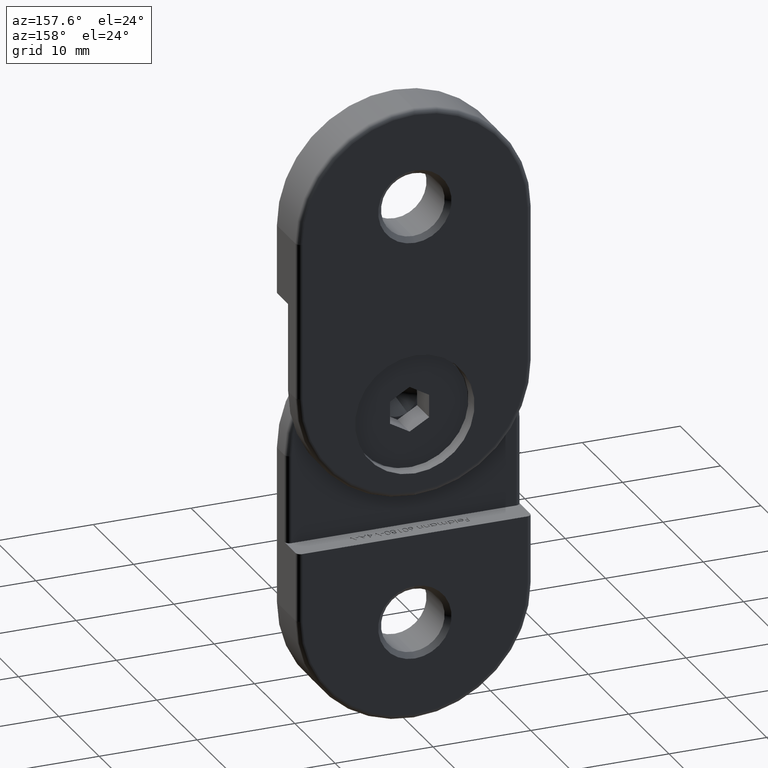
[diagram: clean part render]
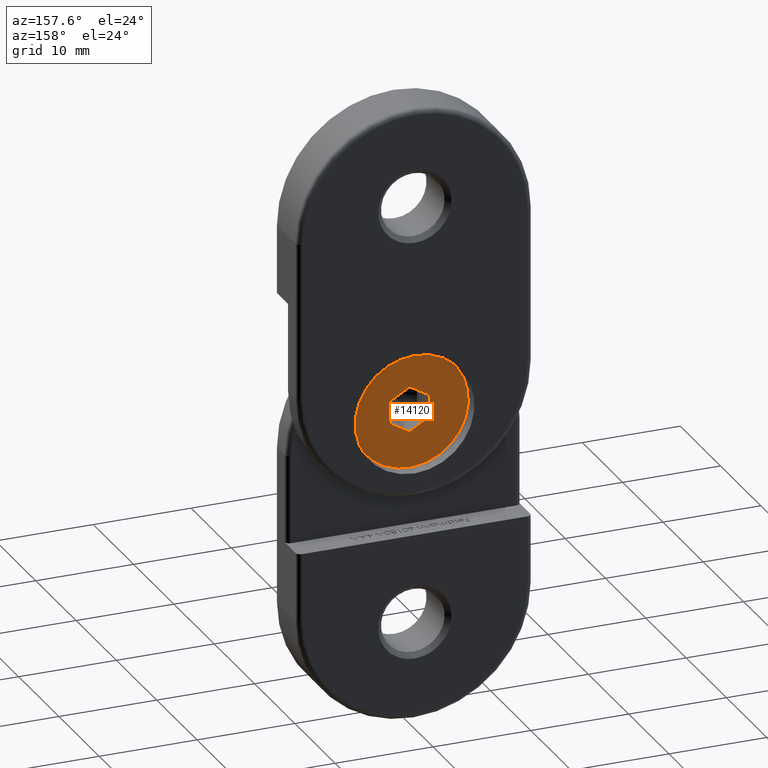
[diagram: same view with one face highlighted and labeled with its STEP entity id]
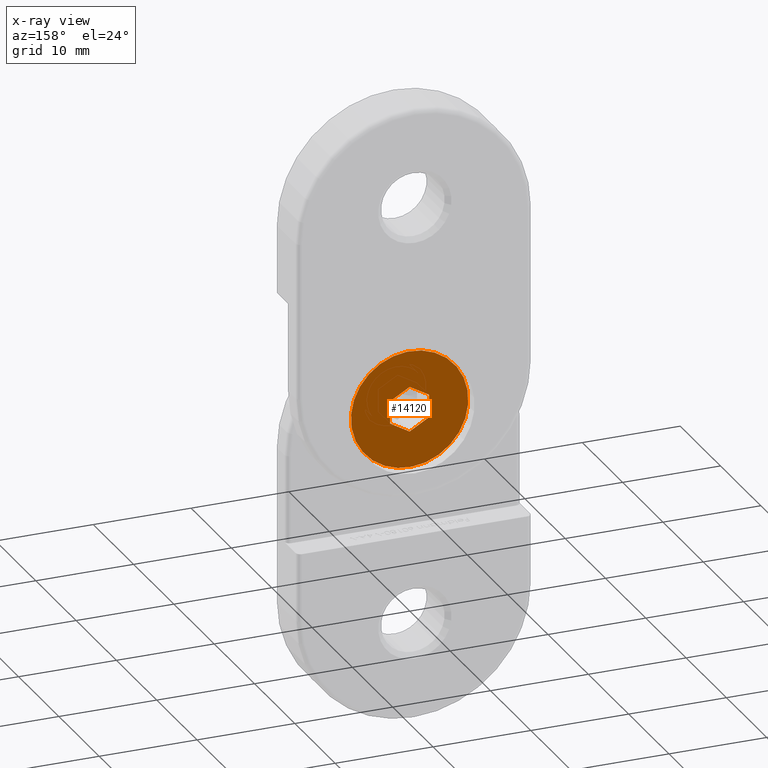
[diagram: x-ray of the same camera — body ghosted, the highlighted face saturated]
A machine part, auxiliary view. The second image highlights one B-rep face of the part: STEP entity #14120.
The next image is the same camera in x-ray: the body ghosted, the highlighted face saturated — about 0% of this face is hidden behind the body in this view.
In plain terms, the highlighted planar face has unit normal (-0, 1, 0).
Its self-contained STEP definition (entity closure, byte-faithful):
#545 = VECTOR ( 'NONE', #4148, 1000.000000000000000 ) ;
#564 = CARTESIAN_POINT ( 'NONE',  ( -2.309401076758504701, -1.734723475976807094E-15, -7.347880794884121708E-16 ) ) ;
#767 = ORIENTED_EDGE ( 'NONE', *, *, #4985, .F. ) ;
#815 = EDGE_CURVE ( 'NONE', #5022, #5067, #1160, .T. ) ;
#848 = EDGE_LOOP ( 'NONE', ( #767, #12246, #5549, #4558, #12490, #6390 ) ) ;
#933 = VECTOR ( 'NONE', #7422, 1000.000000000000000 ) ;
#1160 = LINE ( 'NONE', #14038, #12487 ) ;
#1323 = CIRCLE ( 'NONE', #1739, 6.000000000000000000 ) ;
#1326 = FACE_BOUND ( 'NONE', #848, .T. ) ;
#1372 = CARTESIAN_POINT ( 'NONE',  ( 0.000000000000000000, 6.000000000000000000, 0.000000000000000000 ) ) ;
#1452 = DIRECTION ( 'NONE',  ( -1.000000000000000000, 0.000000000000000000, 0.000000000000000000 ) ) ;
#1636 = VECTOR ( 'NONE', #1764, 1000.000000000000114 ) ;
#1692 = CARTESIAN_POINT ( 'NONE',  ( 1.154700538379250574, -2.000000000000000000, -0.000000000000000000 ) ) ;
#1739 = AXIS2_PLACEMENT_3D ( 'NONE', #4559, #9393, #3180 ) ;
#1764 = DIRECTION ( 'NONE',  ( -0.4999999999999997780, 0.8660254037844388186, 0.000000000000000000 ) ) ;
#1981 = CARTESIAN_POINT ( 'NONE',  ( -1.154700538379252350, 1.999999999999999556, 0.000000000000000000 ) ) ;
#2146 = CARTESIAN_POINT ( 'NONE',  ( 7.347880794884119736E-16, -6.000000000000000000, -2.204364238465235428E-15 ) ) ;
#2575 = CARTESIAN_POINT ( 'NONE',  ( 2.309401076758502480, 5.022240126475751519E-17, 0.000000000000000000 ) ) ;
#2601 = DIRECTION ( 'NONE',  ( 0.000000000000000000, 1.000000000000000000, 1.224646799147353207E-16 ) ) ;
#2750 = ORIENTED_EDGE ( 'NONE', *, *, #12724, .T. ) ;
#2806 = VECTOR ( 'NONE', #9239, 1000.000000000000000 ) ;
#2880 = CARTESIAN_POINT ( 'NONE',  ( -1.154700538379255015, -2.000000000000000000, 0.000000000000000000 ) ) ;
#3024 = EDGE_CURVE ( 'NONE', #5067, #12679, #8663, .T. ) ;
#3180 = DIRECTION ( 'NONE',  ( 0.000000000000000000, 1.000000000000000000, 1.224646799147353207E-16 ) ) ;
#3519 = DIRECTION ( 'NONE',  ( 0.5000000000000001110, 0.8660254037844385966, 0.000000000000000000 ) ) ;
#3743 = EDGE_CURVE ( 'NONE', #13271, #7938, #9060, .T. ) ;
#3861 = CARTESIAN_POINT ( 'NONE',  ( 0.000000000000000000, 1.799711739194228910E-31, -1.469576158976823750E-15 ) ) ;
#3925 = EDGE_CURVE ( 'NONE', #6230, #5779, #1323, .T. ) ;
#4148 = DIRECTION ( 'NONE',  ( 1.000000000000000000, -1.877893248421448296E-16, 0.000000000000000000 ) ) ;
#4204 = VECTOR ( 'NONE', #1452, 1000.000000000000000 ) ;
#4558 = ORIENTED_EDGE ( 'NONE', *, *, #13429, .F. ) ;
#4559 = CARTESIAN_POINT ( 'NONE',  ( 0.000000000000000000, 1.799711739194228910E-31, -1.469576158976823750E-15 ) ) ;
#4649 = DIRECTION ( 'NONE',  ( -0.000000000000000000, 1.224646799147353207E-16, -1.000000000000000000 ) ) ;
#4931 = DIRECTION ( 'NONE',  ( 0.000000000000000000, 1.000000000000000000, 1.224646799147353207E-16 ) ) ;
#4985 = EDGE_CURVE ( 'NONE', #7965, #5022, #7847, .T. ) ;
#5022 = VERTEX_POINT ( 'NONE', #564 ) ;
#5054 = CARTESIAN_POINT ( 'NONE',  ( 2.309401076758502480, 5.022240126475751519E-17, 0.000000000000000000 ) ) ;
#5067 = VERTEX_POINT ( 'NONE', #1981 ) ;
#5075 = DIRECTION ( 'NONE',  ( -0.000000000000000000, 1.224646799147353207E-16, -1.000000000000000000 ) ) ;
#5549 = ORIENTED_EDGE ( 'NONE', *, *, #3743, .F. ) ;
#5754 = AXIS2_PLACEMENT_3D ( 'NONE', #3861, #5075, #4931 ) ;
#5779 = VERTEX_POINT ( 'NONE', #2146 ) ;
#6230 = VERTEX_POINT ( 'NONE', #10543 ) ;
#6390 = ORIENTED_EDGE ( 'NONE', *, *, #815, .F. ) ;
#6412 = CARTESIAN_POINT ( 'NONE',  ( -1.154700538379255015, -2.000000000000000000, 0.000000000000000000 ) ) ;
#6481 = CARTESIAN_POINT ( 'NONE',  ( -1.154700538379252350, 1.999999999999999556, 0.000000000000000000 ) ) ;
#7422 = DIRECTION ( 'NONE',  ( -0.5000000000000001110, -0.8660254037844385966, -0.000000000000000000 ) ) ;
#7847 = LINE ( 'NONE', #6412, #1636 ) ;
#7938 = VERTEX_POINT ( 'NONE', #1692 ) ;
#7965 = VERTEX_POINT ( 'NONE', #2880 ) ;
#8493 = EDGE_CURVE ( 'NONE', #7938, #7965, #15154, .T. ) ;
#8663 = LINE ( 'NONE', #6481, #545 ) ;
#9060 = LINE ( 'NONE', #2575, #933 ) ;
#9239 = DIRECTION ( 'NONE',  ( 0.4999999999999998890, -0.8660254037844387076, 0.000000000000000000 ) ) ;
#9249 = EDGE_LOOP ( 'NONE', ( #10462, #2750 ) ) ;
#9393 = DIRECTION ( 'NONE',  ( -0.000000000000000000, 1.224646799147353207E-16, -1.000000000000000000 ) ) ;
#10079 = CARTESIAN_POINT ( 'NONE',  ( 1.154700538379251684, 1.999999999999999112, 0.000000000000000000 ) ) ;
#10462 = ORIENTED_EDGE ( 'NONE', *, *, #3925, .T. ) ;
#10543 = CARTESIAN_POINT ( 'NONE',  ( 0.000000000000000000, 6.000000000000000000, -7.347880794884117764E-16 ) ) ;
#10580 = FACE_OUTER_BOUND ( 'NONE', #9249, .T. ) ;
#11182 = CARTESIAN_POINT ( 'NONE',  ( 1.154700538379250574, -2.000000000000000000, -0.000000000000000000 ) ) ;
#11776 = CIRCLE ( 'NONE', #5754, 6.000000000000000000 ) ;
#12146 = CARTESIAN_POINT ( 'NONE',  ( 1.154700538379251684, 1.999999999999999112, 0.000000000000000000 ) ) ;
#12246 = ORIENTED_EDGE ( 'NONE', *, *, #8493, .F. ) ;
#12487 = VECTOR ( 'NONE', #3519, 1000.000000000000114 ) ;
#12490 = ORIENTED_EDGE ( 'NONE', *, *, #3024, .F. ) ;
#12679 = VERTEX_POINT ( 'NONE', #12146 ) ;
#12724 = EDGE_CURVE ( 'NONE', #5779, #6230, #11776, .T. ) ;
#12937 = AXIS2_PLACEMENT_3D ( 'NONE', #1372, #4649, #2601 ) ;
#13271 = VERTEX_POINT ( 'NONE', #5054 ) ;
#13429 = EDGE_CURVE ( 'NONE', #12679, #13271, #15450, .T. ) ;
#14038 = CARTESIAN_POINT ( 'NONE',  ( -2.309401076758504701, -1.752598683377171676E-15, 0.000000000000000000 ) ) ;
#14120 = ADVANCED_FACE ( 'NONE', ( #1326, #10580 ), #15590, .T. ) ;
#15154 = LINE ( 'NONE', #11182, #4204 ) ;
#15450 = LINE ( 'NONE', #10079, #2806 ) ;
#15590 = PLANE ( 'NONE',  #12937 ) ;